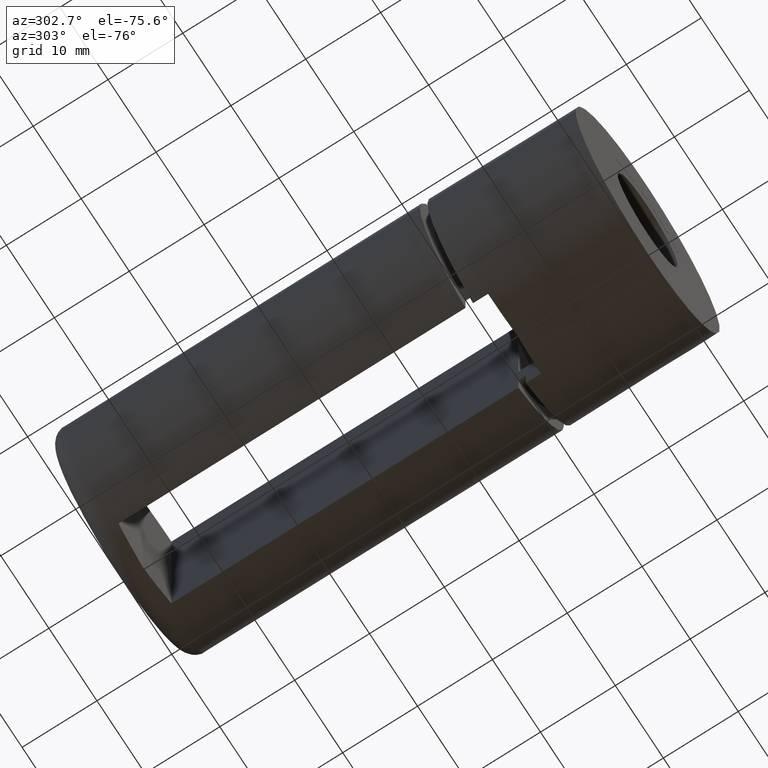
[diagram: clean part render]
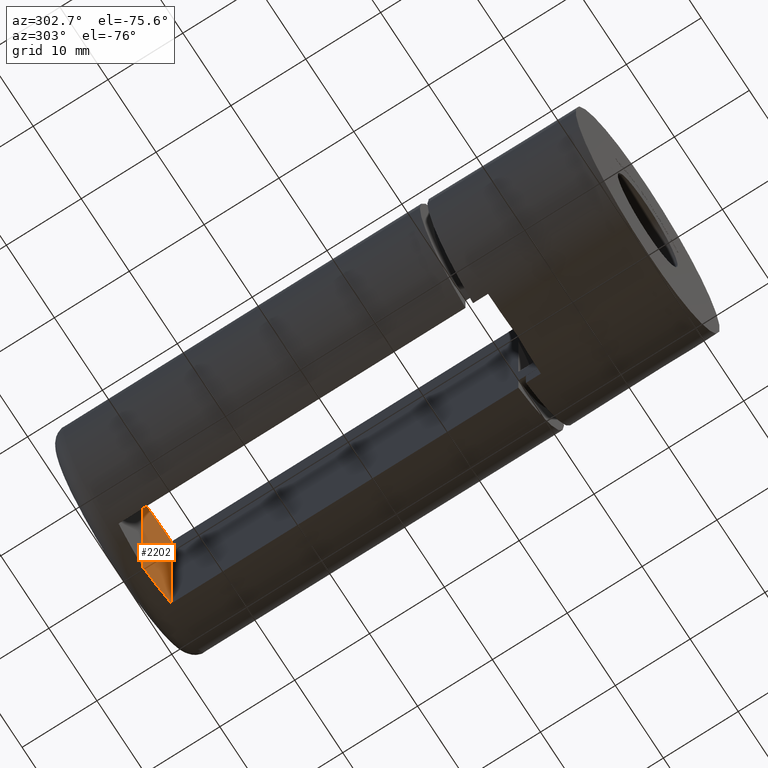
[diagram: same view with one face highlighted and labeled with its STEP entity id]
A machine part, auxiliary view. The second image highlights one B-rep face of the part: STEP entity #2202.
In plain terms, the highlighted planar face has unit normal (0.0523, 0.9986, 0).
Its self-contained STEP definition (entity closure, byte-faithful):
#365 = CARTESIAN_POINT ( 'NONE',  ( 0.0000000000000000000, 4.500000000000000900, -15.00000000000000000 ) ) ;
#1505 = VERTEX_POINT ( 'NONE', #5445 ) ;
#1987 = DIRECTION ( 'NONE',  ( -0.0000000000000000000, -0.0000000000000000000, 1.000000000000000000 ) ) ;
#2202 = ADVANCED_FACE ( 'NONE', ( #7399 ), #12911, .F. ) ;
#2287 = DIRECTION ( 'NONE',  ( 0.9986295347545736100, 0.05233595624294757500, 0.0000000000000000000 ) ) ;
#2418 = CARTESIAN_POINT ( 'NONE',  ( 5.500000000000006200, 4.788242786056748000, -13.95528573695286100 ) ) ;
#2569 = EDGE_CURVE ( 'NONE', #1505, #3060, #3891, .T. ) ;
#3060 = VERTEX_POINT ( 'NONE', #7015 ) ;
#3156 = ORIENTED_EDGE ( 'NONE', *, *, #16739, .F. ) ;
#3737 = CARTESIAN_POINT ( 'NONE',  ( 1.888226473346296800, 4.598957756251532900, -14.99999999999999800 ) ) ;
#3823 = DIRECTION ( 'NONE',  ( 0.05233595624294758200, -0.9986295347545737200, 0.0000000000000000000 ) ) ;
#3891 =( BOUNDED_CURVE ( )  B_SPLINE_CURVE ( 3, ( #15135, #7008, #9708, #16348 ),
 .UNSPECIFIED., .F., .F. ) 
 B_SPLINE_CURVE_WITH_KNOTS ( ( 4, 4 ),
 ( 4.336965372403649400, 4.712388980384689700 ),
 .UNSPECIFIED. ) 
 CURVE ( )  GEOMETRIC_REPRESENTATION_ITEM ( )  RATIONAL_B_SPLINE_CURVE ( ( 1.000000000000000000, 0.9882892067347445200, 0.9882892067347445200, 1.000000000000000000 ) ) 
 REPRESENTATION_ITEM ( '' )  );
#4123 = LINE ( 'NONE', #8474, #13067 ) ;
#4127 = VERTEX_POINT ( 'NONE', #14836 ) ;
#5445 = CARTESIAN_POINT ( 'NONE',  ( 5.500000000000006200, 4.788242786056748000, 13.95528573695286100 ) ) ;
#5735 =( BOUNDED_CURVE ( )  B_SPLINE_CURVE ( 3, ( #17087, #3737, #6445, #2418 ),
 .UNSPECIFIED., .F., .F. ) 
 B_SPLINE_CURVE_WITH_KNOTS ( ( 4, 4 ),
 ( 1.570796326794896600, 1.946219934775936600 ),
 .UNSPECIFIED. ) 
 CURVE ( )  GEOMETRIC_REPRESENTATION_ITEM ( )  RATIONAL_B_SPLINE_CURVE ( ( 1.000000000000000000, 0.9882892067347445200, 0.9882892067347445200, 1.000000000000000000 ) ) 
 REPRESENTATION_ITEM ( '' )  );
#6445 = CARTESIAN_POINT ( 'NONE',  ( 3.743284001891582900, 4.696177201764884400, -14.64763544384649800 ) ) ;
#6602 = CARTESIAN_POINT ( 'NONE',  ( 5.500000000000006200, 4.788242786056748000, -15.00000000000000000 ) ) ;
#7008 = CARTESIAN_POINT ( 'NONE',  ( 3.743284001891588700, 4.696177201764885300, 14.64763544384649800 ) ) ;
#7015 = CARTESIAN_POINT ( 'NONE',  ( 0.0000000000000000000, 4.500000000000000900, 15.00000000000000000 ) ) ;
#7399 = FACE_OUTER_BOUND ( 'NONE', #10416, .T. ) ;
#8474 = CARTESIAN_POINT ( 'NONE',  ( 5.500000000000006200, 4.788242786056748000, -15.00000000000000000 ) ) ;
#9708 = CARTESIAN_POINT ( 'NONE',  ( 1.888226473346301700, 4.598957756251532900, 14.99999999999999800 ) ) ;
#10416 = EDGE_LOOP ( 'NONE', ( #15612, #15946, #16871, #3156 ) ) ;
#10803 = VECTOR ( 'NONE', #1987, 1000.000000000000000 ) ;
#12545 = DIRECTION ( 'NONE',  ( -0.0000000000000000000, -0.0000000000000000000, 1.000000000000000000 ) ) ;
#12911 = PLANE ( 'NONE',  #15275 ) ;
#13067 = VECTOR ( 'NONE', #12545, 1000.000000000000000 ) ;
#13712 = VERTEX_POINT ( 'NONE', #365 ) ;
#13847 = CARTESIAN_POINT ( 'NONE',  ( 0.0000000000000000000, 4.500000000000000900, -15.00000000000000000 ) ) ;
#14773 = EDGE_CURVE ( 'NONE', #4127, #1505, #4123, .T. ) ;
#14836 = CARTESIAN_POINT ( 'NONE',  ( 5.500000000000006200, 4.788242786056748000, -13.95528573695286100 ) ) ;
#15135 = CARTESIAN_POINT ( 'NONE',  ( 5.500000000000006200, 4.788242786056748000, 13.95528573695286100 ) ) ;
#15275 = AXIS2_PLACEMENT_3D ( 'NONE', #6602, #3823, #2287 ) ;
#15612 = ORIENTED_EDGE ( 'NONE', *, *, #16074, .T. ) ;
#15946 = ORIENTED_EDGE ( 'NONE', *, *, #2569, .F. ) ;
#16074 = EDGE_CURVE ( 'NONE', #13712, #3060, #17260, .T. ) ;
#16348 = CARTESIAN_POINT ( 'NONE',  ( 0.0000000000000000000, 4.500000000000000900, 15.00000000000000000 ) ) ;
#16739 = EDGE_CURVE ( 'NONE', #13712, #4127, #5735, .T. ) ;
#16871 = ORIENTED_EDGE ( 'NONE', *, *, #14773, .F. ) ;
#17087 = CARTESIAN_POINT ( 'NONE',  ( 0.0000000000000000000, 4.500000000000000900, -15.00000000000000000 ) ) ;
#17260 = LINE ( 'NONE', #13847, #10803 ) ;